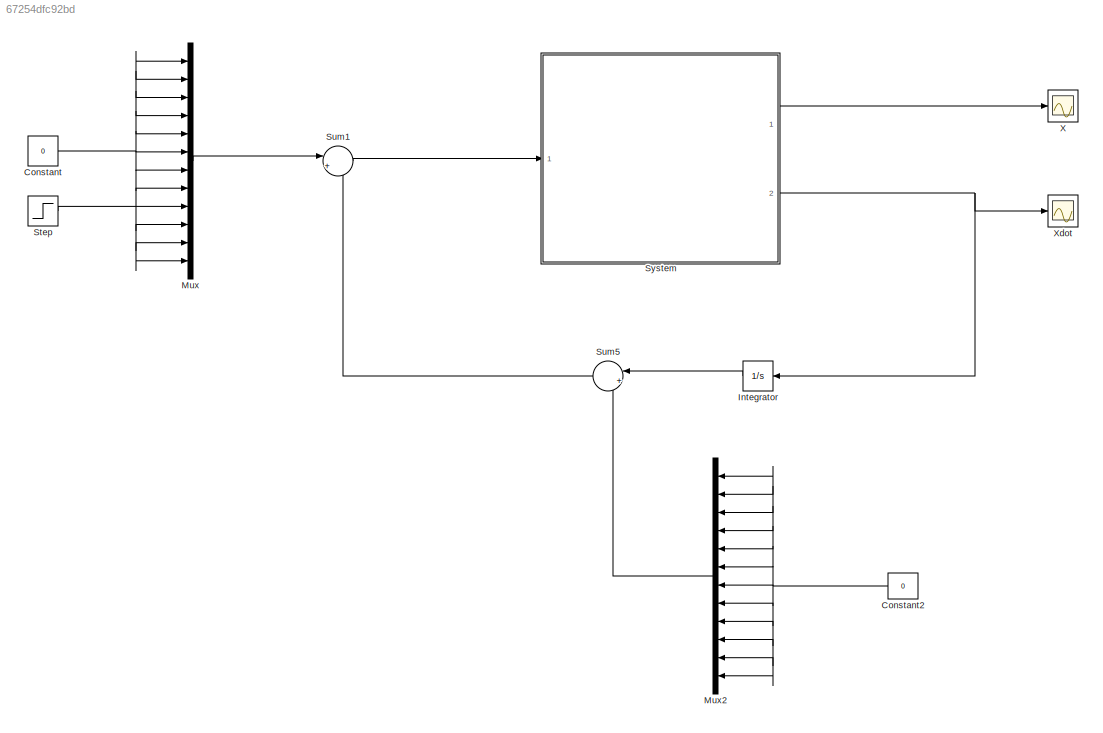
MODEL slx_67254dfc92bd
KIND model
CONFIG AbsTol = auto
CONFIG EnableMultiTasking = off
CONFIG FixedStep = auto
CONFIG MaxStep = auto
CONFIG MinStep = auto
CONFIG RelTol = 1e-3
CONFIG SampleTimeConstraint = Unconstrained
CONFIG Solver = ode23s
CONFIG SolverName = ode23s
CONFIG StartTime = 0.0
CONFIG StopTime = 70
BLOCK [Constant] Constant
  Value = 0
BLOCK [Constant] Constant2
  Value = 0
BLOCK [Integrator] Integrator
  Ports = [1, 1]
BLOCK [Mux] Mux
  DisplayOption = bar
  Inputs = 12
  Ports = [12, 1]
BLOCK [Mux] Mux2
  DisplayOption = bar
  Inputs = 12
  Ports = [12, 1]
BLOCK [Step] Step
  After = 0
  Before = 0.785398164
  SampleTime = 0
  Time = 0.1
BLOCK [Sum] Sum1
  IconShape = round
  InputSameDT = off
  Inputs = |++
  OutDataTypeStr = Inherit: Inherit via internal rule
  Ports = [2, 1]
  SaturateOnIntegerOverflow = off
BLOCK [Sum] Sum5
  IconShape = round
  InputSameDT = off
  Inputs = |++
  OutDataTypeStr = Inherit: Inherit via internal rule
  Ports = [2, 1]
  SaturateOnIntegerOverflow = off
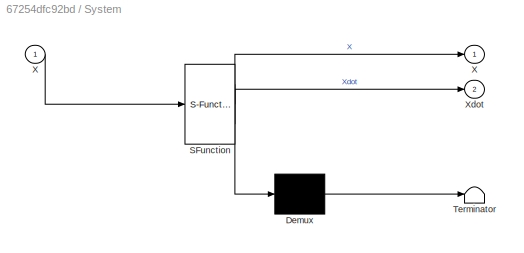
BLOCK [SubSystem] System
  ErrorFcn = Stateflow.Translate.translate
  PermitHierarchicalResolution = ExplicitOnly
  Ports = [1, 2]
  RequestExecContextInheritance = off
  SFBlockType = MATLAB Function
  TreatAsAtomicUnit = on
  Variant = off
BLOCK [Demux] System/ Demux 
  Outputs = 1
  Ports = [1, 1]
BLOCK [S-Function] System/ SFunction 
  EnableBusSupport = on
  FunctionName = sf_sfun
  PortCounts = [1 3]
  Ports = [1, 3]
  SFcnIsStateOwnerBlock = off
  SFunctionDeploymentMode = off
  Tag = Stateflow S-Function Quadcopter_v2 2
BLOCK [Terminator] System/ Terminator 
BLOCK [Outport] System/X
  IconDisplay = Port number
BLOCK [Inport] System/X 
  IconDisplay = Port number
BLOCK [Outport] System/Xdot
  IconDisplay = Port number
  Port = 2
BLOCK [Scope] X
  NumInputPorts = 1
  Ports = [1]
  ScopeSpecificationString = Simulink.scopes.TimeScopeBlockCfg('CurrentConfiguration', extmgr.ConfigurationSet(extmgr.Configuration('Core','General UI',true),extmgr.Configuration('Core','Source UI',true),extmgr.Configuration('Sources','WiredSimulink',true,'DataLoggingVariableName','ScopeData1'),extmgr.Configuration('Visuals','Time Domain',true,'SerializedDisplays',{struct('MinYLimReal','-8.57748','MaxYLimReal','77.19731','YLa...<+2021ch>
BLOCK [Scope] Xdot
  NumInputPorts = 1
  Ports = [1]
  ScopeSpecificationString = Simulink.scopes.TimeScopeBlockCfg('CurrentConfiguration', extmgr.ConfigurationSet(extmgr.Configuration('Core','General UI',true),extmgr.Configuration('Core','Source UI',true),extmgr.Configuration('Sources','WiredSimulink',true),extmgr.Configuration('Visuals','Time Domain',true,'SerializedDisplays',{struct('MinYLimReal','-110.3625','MaxYLimReal','12.2625','YLabelReal','','MinYLimMag',' 0.00000','Ma...<+1750ch>
NET Constant2:1 -> Mux2:1, Mux2:10, Mux2:11, Mux2:12, Mux2:2, Mux2:3, Mux2:4, Mux2:5, Mux2:6, Mux2:7, Mux2:8, Mux2:9
NET Constant:1 -> Mux:1, Mux:10, Mux:11, Mux:12, Mux:2, Mux:3, Mux:4, Mux:5, Mux:6, Mux:7, Mux:8
LINE Integrator:1 -> Sum5:1
LINE Mux2:1 -> Sum5:2
LINE Mux:1 -> Sum1:1
LINE Step:1 -> Mux:9
LINE Sum1:1 -> System:1
LINE Sum5:1 -> Sum1:2
LINE System:1 -> X:1
NET System:2 -> Integrator:1, Xdot:1
note: NET lines group one-source signal fan-out (src -> all destinations, sorted); 1:1 wires keep LINE
CHART System states=1 transitions=1
  STATE_LABEL 'eML_blk_kernel()'
  STATE_LABEL 'SCRIPT:\nfunction [X, Xdot] = fcn(X)\n\n%{\n  x = ( x, vx, y, vy, z, vy, phi, p, theta, q, psi, r)\n  m = mass\n  Ix, Iy, Iz = Moment of Inertia along X, Y, Z axes\n  Ir = ??\n  R = Radius of the wheel\n  omega_r\n%}\n%system parameters\nm = 0.468;  \nIx = 0.004856; Iy = 0.004856; Iz = 0.008801;\nIr = 0.00003357; \nomega_r = 50;\nR = 0.1025; b = 0.1620;\ng = 9.81;\n\nT1 = m*g*sec(X(7))*sec(X(9)); T2 = 0; T3 = 0; T4 ...<+1150ch>'
